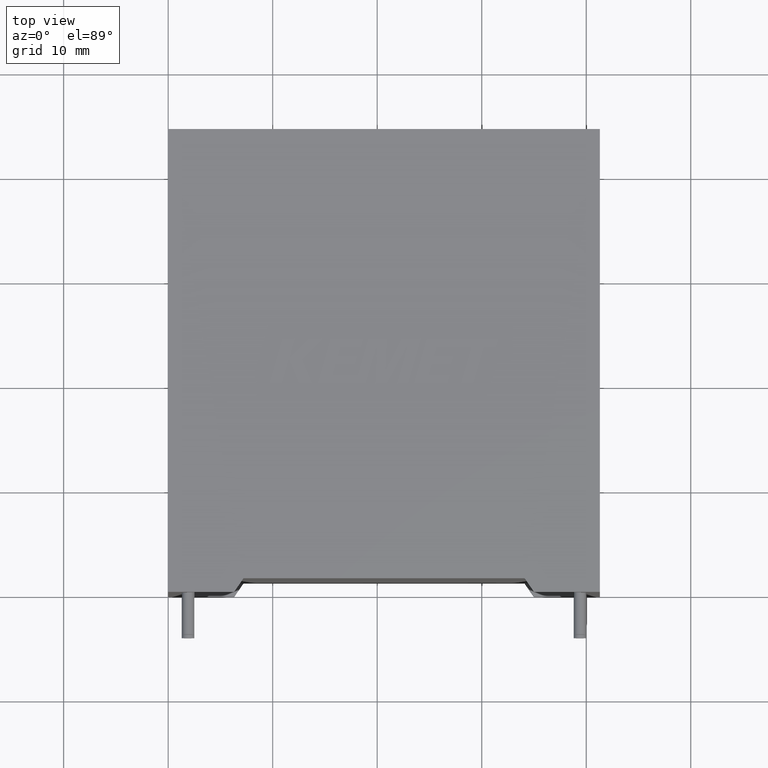
[diagram: clean part render]
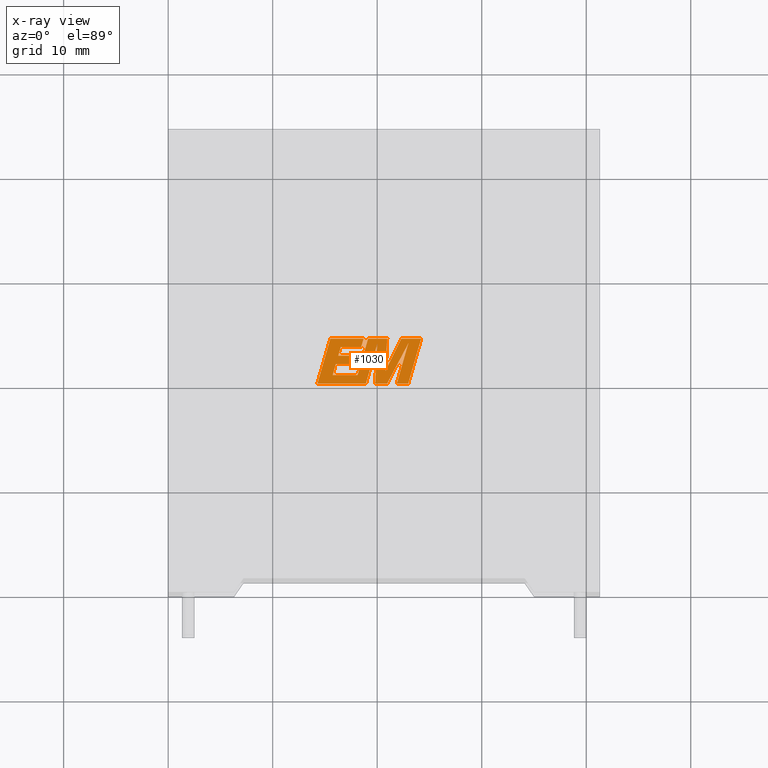
[diagram: x-ray — body ghosted, one internal face saturated and labeled with its STEP entity id]
A machine part, top view, then the same camera in x-ray: the body is ghosted and one INTERNAL B-rep face — a face not visible from any outside direction — is saturated and labeled: STEP entity #1030.
In plain terms, the highlighted planar face has unit normal (0, 0, -1).
Its self-contained STEP definition (entity closure, byte-faithful):
#2 = LINE ( 'NONE', #2458, #771 ) ;
#4 = VERTEX_POINT ( 'NONE', #2480 ) ;
#68 = LINE ( 'NONE', #2197, #625 ) ;
#131 = DIRECTION ( 'NONE',  ( -0.4443210308329524900, -0.8958676361826798400, 0.0000000000000000000 ) ) ;
#161 = VERTEX_POINT ( 'NONE', #1299 ) ;
#194 = EDGE_LOOP ( 'NONE', ( #3354, #516, #2494, #3105, #2532, #292, #3342, #2987, #1479, #405, #2183, #3265, #1631, #1540, #1668, #3218, #763, #3032, #1590, #1929, #2353, #555, #1921 ) ) ;
#202 = DIRECTION ( 'NONE',  ( -1.000000000000000000, 0.0000000000000000000, 0.0000000000000000000 ) ) ;
#252 = VERTEX_POINT ( 'NONE', #1791 ) ;
#266 = LINE ( 'NONE', #1004, #988 ) ;
#283 = EDGE_CURVE ( 'NONE', #1396, #641, #2566, .T. ) ;
#286 = CARTESIAN_POINT ( 'NONE',  ( 19.79882563456691400, 19.92170999999987700, 29.30000000000000100 ) ) ;
#287 = DIRECTION ( 'NONE',  ( 0.4668459304955230900, 0.8843386665637600300, 0.0000000000000000000 ) ) ;
#292 = ORIENTED_EDGE ( 'NONE', *, *, #328, .F. ) ;
#293 = DIRECTION ( 'NONE',  ( -1.000000000000000000, 0.0000000000000000000, 0.0000000000000000000 ) ) ;
#318 = FACE_OUTER_BOUND ( 'NONE', #194, .T. ) ;
#328 = EDGE_CURVE ( 'NONE', #1274, #1850, #3030, .T. ) ;
#338 = DIRECTION ( 'NONE',  ( -0.2760118818968583200, -0.9611542233438683500, 0.0000000000000000000 ) ) ;
#361 = VECTOR ( 'NONE', #1671, 1000.000000000000000 ) ;
#383 = DIRECTION ( 'NONE',  ( 0.0000000000000000000, 0.0000000000000000000, -1.000000000000000000 ) ) ;
#405 = ORIENTED_EDGE ( 'NONE', *, *, #836, .F. ) ;
#432 = EDGE_CURVE ( 'NONE', #2336, #2459, #68, .T. ) ;
#516 = ORIENTED_EDGE ( 'NONE', *, *, #1605, .F. ) ;
#525 = DIRECTION ( 'NONE',  ( -0.2765379750249978800, -0.9610029908221272600, 0.0000000000000000000 ) ) ;
#527 = VECTOR ( 'NONE', #2597, 1000.000000000000000 ) ;
#543 = CARTESIAN_POINT ( 'NONE',  ( 22.97594065796553100, 23.76848135779108200, 29.30000000000000100 ) ) ;
#555 = ORIENTED_EDGE ( 'NONE', *, *, #2449, .F. ) ;
#608 = VERTEX_POINT ( 'NONE', #1485 ) ;
#609 = DIRECTION ( 'NONE',  ( -1.000000000000000000, 0.0000000000000000000, 0.0000000000000000000 ) ) ;
#612 = VERTEX_POINT ( 'NONE', #1205 ) ;
#625 = VECTOR ( 'NONE', #609, 1000.000000000000000 ) ;
#630 = VECTOR ( 'NONE', #202, 1000.000000000000000 ) ;
#641 = VERTEX_POINT ( 'NONE', #1990 ) ;
#661 = VECTOR ( 'NONE', #131, 1000.000000000000100 ) ;
#662 = VECTOR ( 'NONE', #1227, 1000.000000000000000 ) ;
#698 = VECTOR ( 'NONE', #2023, 1000.000000000000000 ) ;
#756 = EDGE_CURVE ( 'NONE', #2169, #1274, #266, .T. ) ;
#763 = ORIENTED_EDGE ( 'NONE', *, *, #2906, .F. ) ;
#771 = VECTOR ( 'NONE', #1440, 1000.000000000000100 ) ;
#790 = CARTESIAN_POINT ( 'NONE',  ( 16.27140148248087900, 22.60353874671340400, 29.30000000000000100 ) ) ;
#794 = EDGE_CURVE ( 'NONE', #4, #2336, #1820, .T. ) ;
#801 = EDGE_CURVE ( 'NONE', #1008, #2049, #2063, .T. ) ;
#836 = EDGE_CURVE ( 'NONE', #252, #608, #2941, .T. ) ;
#860 = CARTESIAN_POINT ( 'NONE',  ( 16.04460011617542000, 21.80858335240654700, 29.30000000000000100 ) ) ;
#932 = CARTESIAN_POINT ( 'NONE',  ( 18.69581996180002300, 24.22188796330467400, 29.30000000000000100 ) ) ;
#961 = CARTESIAN_POINT ( 'NONE',  ( 16.50413896202838200, 23.40337116797831000, 29.30000000000000100 ) ) ;
#988 = VECTOR ( 'NONE', #2300, 1000.000000000000200 ) ;
#995 = EDGE_CURVE ( 'NONE', #3381, #1583, #3126, .T. ) ;
#1004 = CARTESIAN_POINT ( 'NONE',  ( 20.01341482076186300, 23.75004541138661600, 29.30000000000000100 ) ) ;
#1008 = VERTEX_POINT ( 'NONE', #2485 ) ;
#1012 = CARTESIAN_POINT ( 'NONE',  ( 20.95603049113866900, 24.22188796330467400, 29.30000000000000100 ) ) ;
#1030 = ADVANCED_FACE ( 'NONE', ( #318 ), #1158, .T. ) ;
#1043 = VERTEX_POINT ( 'NONE', #860 ) ;
#1066 = LINE ( 'NONE', #1592, #2398 ) ;
#1078 = VECTOR ( 'NONE', #1895, 1000.000000000000000 ) ;
#1085 = DIRECTION ( 'NONE',  ( 0.2793947940878290200, 0.9601763114327595000, 0.0000000000000000000 ) ) ;
#1089 = DIRECTION ( 'NONE',  ( 1.000000000000000000, 0.0000000000000000000, 0.0000000000000000000 ) ) ;
#1110 = CARTESIAN_POINT ( 'NONE',  ( 18.46334398503807600, 23.40337116797831000, 29.30000000000000100 ) ) ;
#1149 = LINE ( 'NONE', #3011, #661 ) ;
#1158 = PLANE ( 'NONE',  #1790 ) ;
#1188 = EDGE_CURVE ( 'NONE', #1296, #2165, #2409, .T. ) ;
#1205 = CARTESIAN_POINT ( 'NONE',  ( 24.20034900258642100, 24.22188796330467400, 29.30000000000000100 ) ) ;
#1227 = DIRECTION ( 'NONE',  ( 1.000000000000000000, 0.0000000000000000000, 0.0000000000000000000 ) ) ;
#1231 = LINE ( 'NONE', #3028, #2689 ) ;
#1234 = VECTOR ( 'NONE', #1089, 1000.000000000000000 ) ;
#1235 = CARTESIAN_POINT ( 'NONE',  ( 24.20034900258642100, 24.22188796330467400, 29.30000000000000100 ) ) ;
#1267 = LINE ( 'NONE', #1235, #527 ) ;
#1274 = VERTEX_POINT ( 'NONE', #2559 ) ;
#1296 = VERTEX_POINT ( 'NONE', #1012 ) ;
#1299 = CARTESIAN_POINT ( 'NONE',  ( 18.91418785979892900, 19.92170999999987700, 29.30000000000000100 ) ) ;
#1304 = CARTESIAN_POINT ( 'NONE',  ( 20.79065794303273800, 21.14978557581176200, 29.30000000000000100 ) ) ;
#1380 = EDGE_CURVE ( 'NONE', #2049, #2752, #1825, .T. ) ;
#1382 = DIRECTION ( 'NONE',  ( 0.2732148821746573900, 0.9619530280415400400, 0.0000000000000000000 ) ) ;
#1390 = CARTESIAN_POINT ( 'NONE',  ( 18.46334398503807600, 23.40337116797831000, 29.30000000000000100 ) ) ;
#1396 = VERTEX_POINT ( 'NONE', #2407 ) ;
#1440 = DIRECTION ( 'NONE',  ( -0.2762517575166410500, -0.9610853065513834700, 0.0000000000000000000 ) ) ;
#1479 = ORIENTED_EDGE ( 'NONE', *, *, #2129, .F. ) ;
#1485 = CARTESIAN_POINT ( 'NONE',  ( 14.28157447978835700, 19.92170999999987700, 29.30000000000000100 ) ) ;
#1531 = EDGE_CURVE ( 'NONE', #161, #2169, #1231, .T. ) ;
#1537 = CARTESIAN_POINT ( 'NONE',  ( 18.11708814608682500, 22.60353874671340400, 29.30000000000000100 ) ) ;
#1540 = ORIENTED_EDGE ( 'NONE', *, *, #1913, .F. ) ;
#1549 = CARTESIAN_POINT ( 'NONE',  ( 20.95603049113866900, 24.22188796330467400, 29.30000000000000100 ) ) ;
#1578 = EDGE_CURVE ( 'NONE', #1625, #2464, #1149, .T. ) ;
#1583 = VERTEX_POINT ( 'NONE', #1925 ) ;
#1590 = ORIENTED_EDGE ( 'NONE', *, *, #995, .F. ) ;
#1592 = CARTESIAN_POINT ( 'NONE',  ( 20.94521462298436300, 19.92170999999987700, 29.30000000000000100 ) ) ;
#1605 = EDGE_CURVE ( 'NONE', #641, #612, #3203, .T. ) ;
#1610 = VECTOR ( 'NONE', #1995, 1000.000000000000000 ) ;
#1616 = VECTOR ( 'NONE', #1966, 1000.000000000000000 ) ;
#1625 = VERTEX_POINT ( 'NONE', #1963 ) ;
#1631 = ORIENTED_EDGE ( 'NONE', *, *, #801, .F. ) ;
#1633 = CARTESIAN_POINT ( 'NONE',  ( 16.27140148248087900, 22.60353874671340400, 29.30000000000000100 ) ) ;
#1668 = ORIENTED_EDGE ( 'NONE', *, *, #432, .F. ) ;
#1671 = DIRECTION ( 'NONE',  ( -1.000000000000000000, 0.0000000000000000000, 0.0000000000000000000 ) ) ;
#1726 = CARTESIAN_POINT ( 'NONE',  ( 18.69581996180002300, 24.22188796330467400, 29.30000000000000100 ) ) ;
#1729 = VECTOR ( 'NONE', #3139, 1000.000000000000000 ) ;
#1737 = VECTOR ( 'NONE', #1382, 1000.000000000000100 ) ;
#1758 = DIRECTION ( 'NONE',  ( 0.2763139702539143500, 0.9610674221107065000, 0.0000000000000000000 ) ) ;
#1771 = LINE ( 'NONE', #3409, #2557 ) ;
#1790 = AXIS2_PLACEMENT_3D ( 'NONE', #2974, #383, #293 ) ;
#1791 = CARTESIAN_POINT ( 'NONE',  ( 15.51899259146573200, 24.22188796330467400, 29.30000000000000100 ) ) ;
#1814 = VECTOR ( 'NONE', #338, 1000.000000000000100 ) ;
#1820 = LINE ( 'NONE', #2818, #698 ) ;
#1825 = LINE ( 'NONE', #1390, #1737 ) ;
#1850 = VERTEX_POINT ( 'NONE', #2833 ) ;
#1876 = CARTESIAN_POINT ( 'NONE',  ( 21.87127443905528800, 19.92170999999988000, 29.30000000000000100 ) ) ;
#1895 = DIRECTION ( 'NONE',  ( 1.000000000000000000, 0.0000000000000000000, 0.0000000000000000000 ) ) ;
#1913 = EDGE_CURVE ( 'NONE', #2459, #1008, #2765, .T. ) ;
#1921 = ORIENTED_EDGE ( 'NONE', *, *, #1578, .F. ) ;
#1925 = CARTESIAN_POINT ( 'NONE',  ( 15.74008012186814800, 20.73982146601603600, 29.30000000000000100 ) ) ;
#1929 = ORIENTED_EDGE ( 'NONE', *, *, #3347, .F. ) ;
#1963 = CARTESIAN_POINT ( 'NONE',  ( 22.31432019458089000, 24.22188796330467400, 29.30000000000000100 ) ) ;
#1966 = DIRECTION ( 'NONE',  ( 1.000000000000000000, 0.0000000000000000000, 0.0000000000000000000 ) ) ;
#1990 = CARTESIAN_POINT ( 'NONE',  ( 22.96401613092420000, 19.92170999999988000, 29.30000000000000100 ) ) ;
#1995 = DIRECTION ( 'NONE',  ( -1.000000000000000000, 0.0000000000000000000, 0.0000000000000000000 ) ) ;
#2023 = DIRECTION ( 'NONE',  ( 0.2746459304916870100, 0.9615454294334487800, 0.0000000000000000000 ) ) ;
#2049 = VERTEX_POINT ( 'NONE', #1110 ) ;
#2063 = LINE ( 'NONE', #961, #662 ) ;
#2129 = EDGE_CURVE ( 'NONE', #608, #161, #3413, .T. ) ;
#2165 = VERTEX_POINT ( 'NONE', #3018 ) ;
#2169 = VERTEX_POINT ( 'NONE', #2575 ) ;
#2183 = ORIENTED_EDGE ( 'NONE', *, *, #2750, .F. ) ;
#2197 = CARTESIAN_POINT ( 'NONE',  ( 18.11708814608682500, 22.60353874671340400, 29.30000000000000100 ) ) ;
#2218 = CARTESIAN_POINT ( 'NONE',  ( 18.14876920516941900, 19.92170999999987700, 29.30000000000000100 ) ) ;
#2236 = VECTOR ( 'NONE', #525, 1000.000000000000200 ) ;
#2276 = VECTOR ( 'NONE', #1758, 1000.000000000000000 ) ;
#2300 = DIRECTION ( 'NONE',  ( -0.05596501978068446600, -0.9984327301130244700, 0.0000000000000000000 ) ) ;
#2336 = VERTEX_POINT ( 'NONE', #1537 ) ;
#2352 = DIRECTION ( 'NONE',  ( 0.05375259206908569700, 0.9985542843760946100, 0.0000000000000000000 ) ) ;
#2353 = ORIENTED_EDGE ( 'NONE', *, *, #1188, .F. ) ;
#2398 = VECTOR ( 'NONE', #287, 1000.000000000000100 ) ;
#2407 = CARTESIAN_POINT ( 'NONE',  ( 21.87127443905528800, 19.92170999999988000, 29.30000000000000100 ) ) ;
#2409 = LINE ( 'NONE', #1549, #630 ) ;
#2449 = EDGE_CURVE ( 'NONE', #2464, #1296, #1771, .T. ) ;
#2458 = CARTESIAN_POINT ( 'NONE',  ( 19.12473683140143900, 24.22188796330467400, 29.30000000000000100 ) ) ;
#2459 = VERTEX_POINT ( 'NONE', #790 ) ;
#2464 = VERTEX_POINT ( 'NONE', #1304 ) ;
#2478 = LINE ( 'NONE', #1726, #1610 ) ;
#2480 = CARTESIAN_POINT ( 'NONE',  ( 17.89002527699551600, 21.80858335240654700, 29.30000000000000100 ) ) ;
#2484 = EDGE_CURVE ( 'NONE', #2879, #1396, #2521, .T. ) ;
#2485 = CARTESIAN_POINT ( 'NONE',  ( 16.50413896202838200, 23.40337116797831000, 29.30000000000000100 ) ) ;
#2494 = ORIENTED_EDGE ( 'NONE', *, *, #283, .F. ) ;
#2521 = LINE ( 'NONE', #543, #1814 ) ;
#2532 = ORIENTED_EDGE ( 'NONE', *, *, #3116, .F. ) ;
#2557 = VECTOR ( 'NONE', #2352, 1000.000000000000000 ) ;
#2559 = CARTESIAN_POINT ( 'NONE',  ( 19.79882563456691400, 19.92170999999987700, 29.30000000000000100 ) ) ;
#2566 = LINE ( 'NONE', #1876, #1078 ) ;
#2568 = DIRECTION ( 'NONE',  ( 0.2740217765954297000, 0.9617234872620531400, 0.0000000000000000000 ) ) ;
#2573 = CARTESIAN_POINT ( 'NONE',  ( 18.12386106823173600, 20.73982146601603600, 29.30000000000000100 ) ) ;
#2575 = CARTESIAN_POINT ( 'NONE',  ( 20.01341482076186300, 23.75004541138661600, 29.30000000000000100 ) ) ;
#2595 = LINE ( 'NONE', #2865, #2640 ) ;
#2597 = DIRECTION ( 'NONE',  ( -1.000000000000000000, 0.0000000000000000000, 0.0000000000000000000 ) ) ;
#2640 = VECTOR ( 'NONE', #2568, 1000.000000000000000 ) ;
#2689 = VECTOR ( 'NONE', #2757, 1000.000000000000100 ) ;
#2690 = VECTOR ( 'NONE', #1085, 1000.000000000000200 ) ;
#2750 = EDGE_CURVE ( 'NONE', #2752, #252, #2478, .T. ) ;
#2752 = VERTEX_POINT ( 'NONE', #932 ) ;
#2757 = DIRECTION ( 'NONE',  ( 0.2759782365590843200, 0.9611638845408925200, 0.0000000000000000000 ) ) ;
#2765 = LINE ( 'NONE', #1633, #2690 ) ;
#2818 = CARTESIAN_POINT ( 'NONE',  ( 17.89002527699551600, 21.80858335240654700, 29.30000000000000100 ) ) ;
#2833 = CARTESIAN_POINT ( 'NONE',  ( 20.94521462298436300, 19.92170999999987700, 29.30000000000000100 ) ) ;
#2850 = CARTESIAN_POINT ( 'NONE',  ( 22.97594065796553100, 23.76848135779108200, 29.30000000000000100 ) ) ;
#2865 = CARTESIAN_POINT ( 'NONE',  ( 15.74008012186814800, 20.73982146601603600, 29.30000000000000100 ) ) ;
#2879 = VERTEX_POINT ( 'NONE', #2850 ) ;
#2906 = EDGE_CURVE ( 'NONE', #1043, #4, #3150, .T. ) ;
#2941 = LINE ( 'NONE', #3184, #2236 ) ;
#2953 = EDGE_CURVE ( 'NONE', #1583, #1043, #2595, .T. ) ;
#2974 = CARTESIAN_POINT ( 'NONE',  ( -0.1457575896631480000, -1.623224047257569000, 29.30000000000000100 ) ) ;
#2987 = ORIENTED_EDGE ( 'NONE', *, *, #1531, .F. ) ;
#3011 = CARTESIAN_POINT ( 'NONE',  ( 22.31432019458089000, 24.22188796330467400, 29.30000000000000100 ) ) ;
#3018 = CARTESIAN_POINT ( 'NONE',  ( 19.12473683140143900, 24.22188796330467400, 29.30000000000000100 ) ) ;
#3028 = CARTESIAN_POINT ( 'NONE',  ( 18.91418785979892900, 19.92170999999987700, 29.30000000000000100 ) ) ;
#3030 = LINE ( 'NONE', #286, #1234 ) ;
#3032 = ORIENTED_EDGE ( 'NONE', *, *, #2953, .F. ) ;
#3105 = ORIENTED_EDGE ( 'NONE', *, *, #2484, .F. ) ;
#3114 = CARTESIAN_POINT ( 'NONE',  ( 16.04460011617542000, 21.80858335240654700, 29.30000000000000100 ) ) ;
#3116 = EDGE_CURVE ( 'NONE', #1850, #2879, #1066, .T. ) ;
#3126 = LINE ( 'NONE', #3275, #361 ) ;
#3139 = DIRECTION ( 'NONE',  ( 1.000000000000000000, 0.0000000000000000000, 0.0000000000000000000 ) ) ;
#3150 = LINE ( 'NONE', #3114, #1729 ) ;
#3184 = CARTESIAN_POINT ( 'NONE',  ( 15.51899259146573200, 24.22188796330467400, 29.30000000000000100 ) ) ;
#3203 = LINE ( 'NONE', #3367, #2276 ) ;
#3218 = ORIENTED_EDGE ( 'NONE', *, *, #794, .F. ) ;
#3265 = ORIENTED_EDGE ( 'NONE', *, *, #1380, .F. ) ;
#3275 = CARTESIAN_POINT ( 'NONE',  ( 18.12386106823173600, 20.73982146601603600, 29.30000000000000100 ) ) ;
#3342 = ORIENTED_EDGE ( 'NONE', *, *, #756, .F. ) ;
#3347 = EDGE_CURVE ( 'NONE', #2165, #3381, #2, .T. ) ;
#3354 = ORIENTED_EDGE ( 'NONE', *, *, #3370, .F. ) ;
#3367 = CARTESIAN_POINT ( 'NONE',  ( 22.96401613092420000, 19.92170999999988000, 29.30000000000000100 ) ) ;
#3370 = EDGE_CURVE ( 'NONE', #612, #1625, #1267, .T. ) ;
#3381 = VERTEX_POINT ( 'NONE', #2573 ) ;
#3409 = CARTESIAN_POINT ( 'NONE',  ( 20.79065794303273800, 21.14978557581176200, 29.30000000000000100 ) ) ;
#3413 = LINE ( 'NONE', #2218, #1616 ) ;